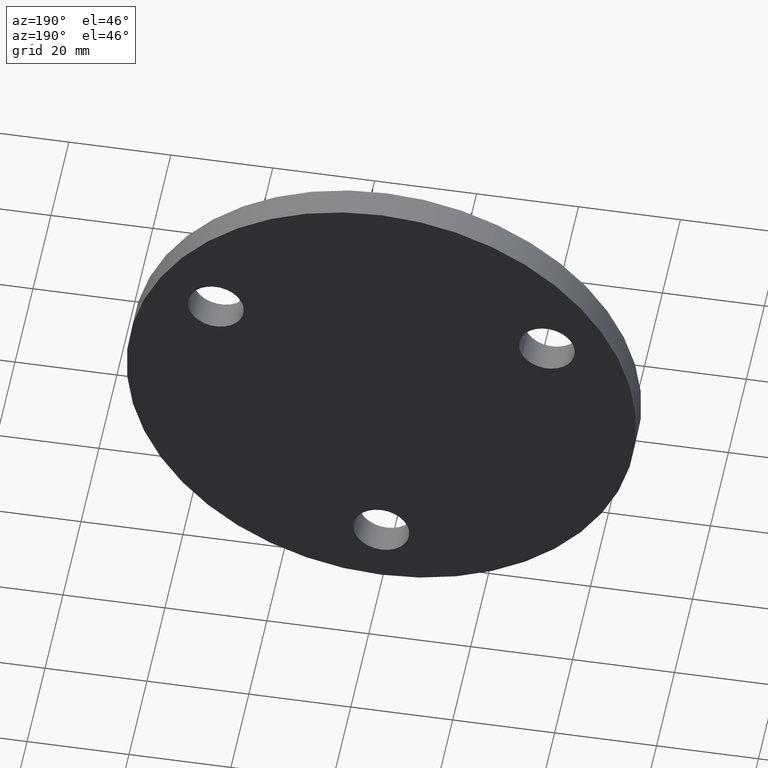
[diagram: clean part render]
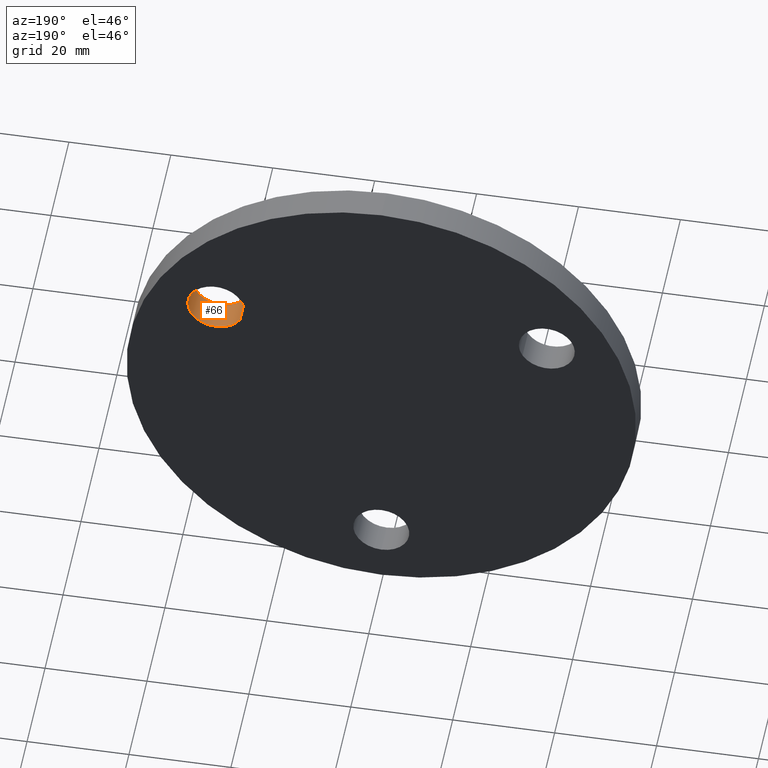
[diagram: same view with one face highlighted and labeled with its STEP entity id]
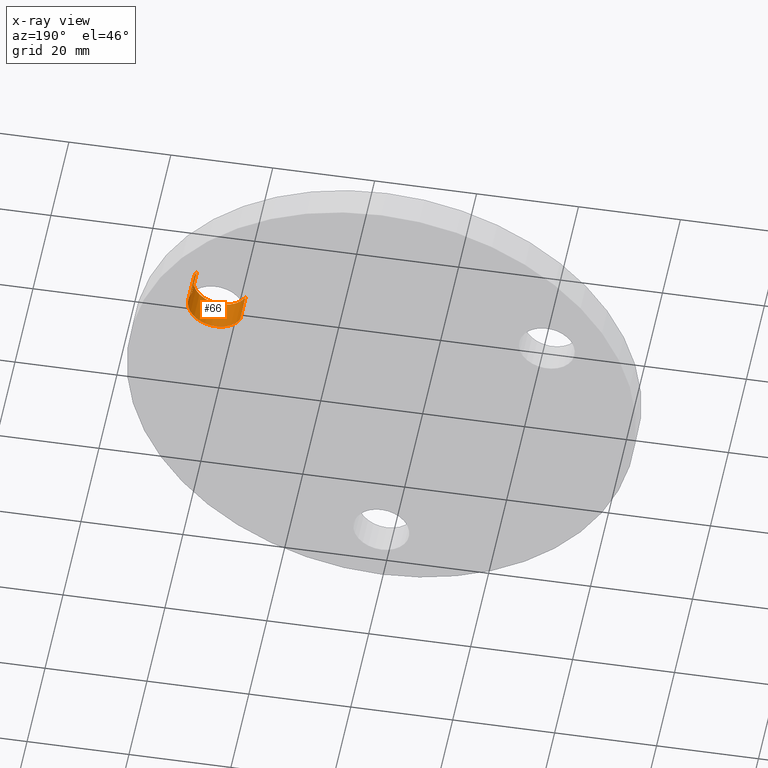
[diagram: x-ray of the same camera — body ghosted, the highlighted face saturated]
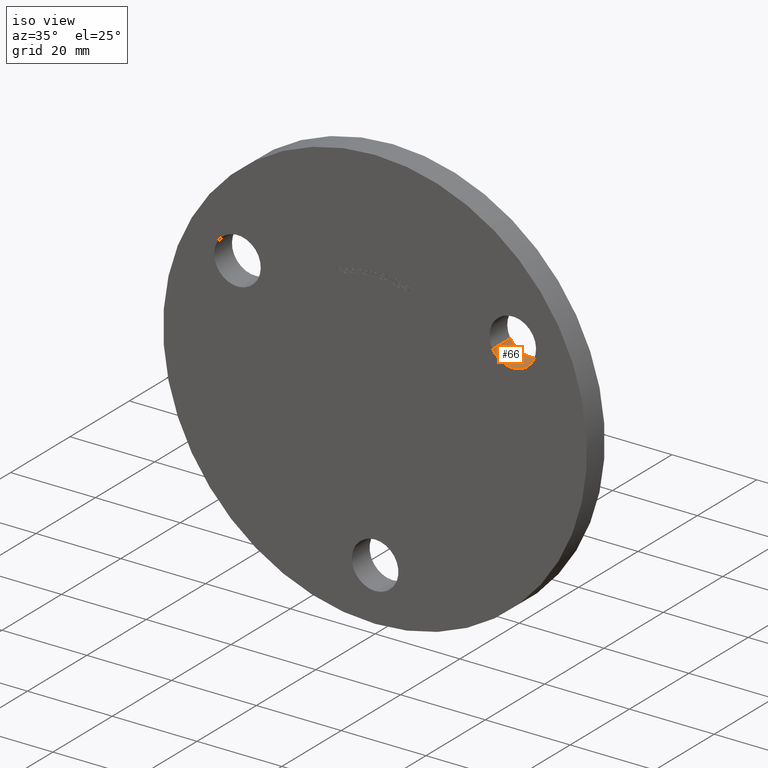
[diagram: same view with one face highlighted and labeled with its STEP entity id]
A machine part, auxiliary view. The second image highlights one B-rep face of the part: STEP entity #66.
The next image is the same camera in x-ray: the body ghosted, the highlighted face saturated — about 0% of this face is hidden behind the body in this view.
A second angle (iso view) of the same face is appended — the face is thin or edge-on in the first view.
In plain terms, the highlighted cylindrical surface (edge-blend (fillet) strip) has radius 5.5 mm, axis along (0, 1, 0).
Its self-contained STEP definition (entity closure, byte-faithful):
#66 = ADVANCED_FACE ( 'NONE', ( #5892 ), #4364, .F. ) ;
#151 = VERTEX_POINT ( 'NONE', #2631 ) ;
#278 = DIRECTION ( 'NONE',  ( -0.8660254037844362700, 0.0000000000000000000, -0.5000000000000040000 ) ) ;
#579 = DIRECTION ( 'NONE',  ( 0.0000000000000000000, 1.000000000000000000, 0.0000000000000000000 ) ) ;
#786 = ORIENTED_EDGE ( 'NONE', *, *, #10563, .F. ) ;
#1080 = ORIENTED_EDGE ( 'NONE', *, *, #1512, .T. ) ;
#1200 = DIRECTION ( 'NONE',  ( 0.0000000000000000000, 1.000000000000000000, 0.0000000000000000000 ) ) ;
#1512 = EDGE_CURVE ( 'NONE', #11405, #151, #4794, .T. ) ;
#1668 = DIRECTION ( 'NONE',  ( 0.0000000000000000000, 1.000000000000000000, 0.0000000000000000000 ) ) ;
#1705 = CARTESIAN_POINT ( 'NONE',  ( 32.47595264191637200, 6.000000000000000000, 18.75000000000015300 ) ) ;
#2266 = LINE ( 'NONE', #11065, #10326 ) ;
#2351 = CARTESIAN_POINT ( 'NONE',  ( 27.71281292110196800, 0.0000000000000000000, 16.00000000000012800 ) ) ;
#2557 = CIRCLE ( 'NONE', #6990, 5.500000000000001800 ) ;
#2631 = CARTESIAN_POINT ( 'NONE',  ( 27.71281292110196800, 6.000000000000000000, 16.00000000000012800 ) ) ;
#2705 = EDGE_LOOP ( 'NONE', ( #786, #7765, #1080, #7425 ) ) ;
#3754 = CARTESIAN_POINT ( 'NONE',  ( 32.47595264191637200, 0.0000000000000000000, 18.75000000000015300 ) ) ;
#4343 = DIRECTION ( 'NONE',  ( -0.8660254037844362700, 0.0000000000000000000, -0.5000000000000040000 ) ) ;
#4364 = CYLINDRICAL_SURFACE ( 'NONE', #6874, 5.500000000000001800 ) ;
#4789 = AXIS2_PLACEMENT_3D ( 'NONE', #1705, #1668, #7962 ) ;
#4794 = CIRCLE ( 'NONE', #4789, 5.500000000000001800 ) ;
#4803 = DIRECTION ( 'NONE',  ( 0.0000000000000000000, 1.000000000000000000, 0.0000000000000000000 ) ) ;
#5224 = DIRECTION ( 'NONE',  ( 0.0000000000000000000, 1.000000000000000000, 0.0000000000000000000 ) ) ;
#5260 = CARTESIAN_POINT ( 'NONE',  ( 37.23909236273077300, 6.000000000000000000, 21.50000000000017400 ) ) ;
#5892 = FACE_OUTER_BOUND ( 'NONE', #2705, .T. ) ;
#5978 = EDGE_CURVE ( 'NONE', #9295, #151, #11511, .T. ) ;
#6217 = CARTESIAN_POINT ( 'NONE',  ( 37.23909236273077300, 0.0000000000000000000, 21.50000000000017400 ) ) ;
#6407 = VECTOR ( 'NONE', #579, 1000.000000000000000 ) ;
#6874 = AXIS2_PLACEMENT_3D ( 'NONE', #7943, #5224, #4343 ) ;
#6990 = AXIS2_PLACEMENT_3D ( 'NONE', #3754, #4803, #278 ) ;
#7425 = ORIENTED_EDGE ( 'NONE', *, *, #5978, .F. ) ;
#7591 = CARTESIAN_POINT ( 'NONE',  ( 27.71281292110196800, 0.0000000000000000000, 16.00000000000012800 ) ) ;
#7765 = ORIENTED_EDGE ( 'NONE', *, *, #10417, .T. ) ;
#7943 = CARTESIAN_POINT ( 'NONE',  ( 32.47595264191637200, 0.0000000000000000000, 18.75000000000015300 ) ) ;
#7962 = DIRECTION ( 'NONE',  ( -0.8660254037844362700, 0.0000000000000000000, -0.5000000000000040000 ) ) ;
#9295 = VERTEX_POINT ( 'NONE', #7591 ) ;
#10326 = VECTOR ( 'NONE', #1200, 1000.000000000000000 ) ;
#10417 = EDGE_CURVE ( 'NONE', #11574, #11405, #2266, .T. ) ;
#10563 = EDGE_CURVE ( 'NONE', #11574, #9295, #2557, .T. ) ;
#11065 = CARTESIAN_POINT ( 'NONE',  ( 37.23909236273077300, 0.0000000000000000000, 21.50000000000017400 ) ) ;
#11405 = VERTEX_POINT ( 'NONE', #5260 ) ;
#11511 = LINE ( 'NONE', #2351, #6407 ) ;
#11574 = VERTEX_POINT ( 'NONE', #6217 ) ;